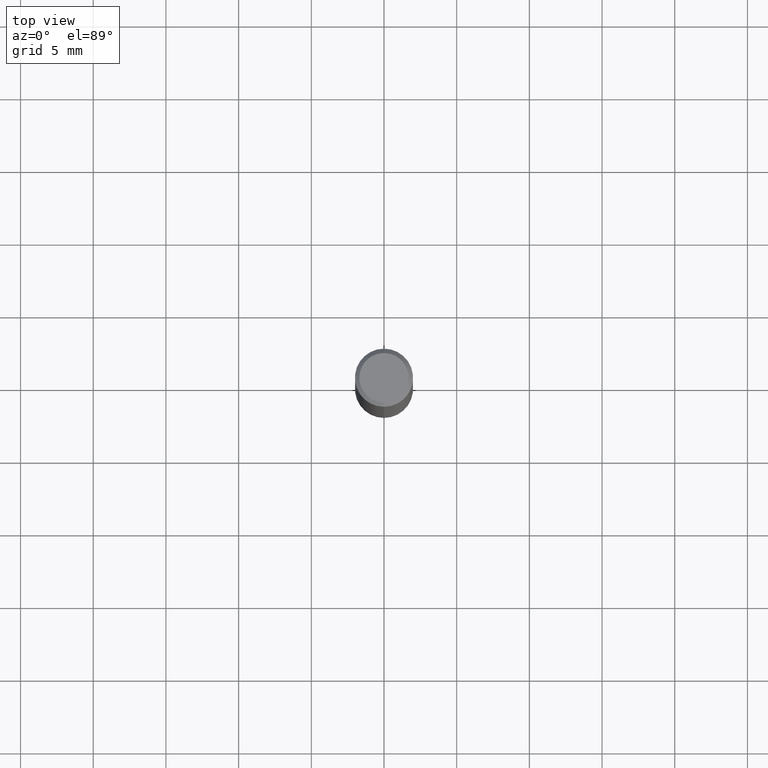
[diagram: clean part render]
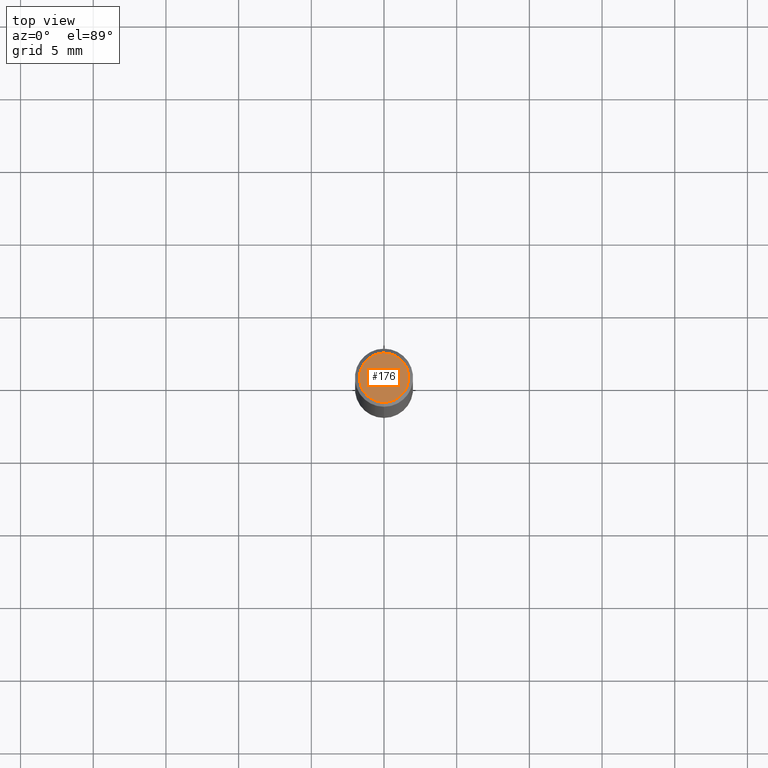
[diagram: same view with one face highlighted and labeled with its STEP entity id]
A machine part, top view. The second image highlights one B-rep face of the part: STEP entity #176.
In plain terms, the highlighted planar face has unit normal (-0, 0, 1).
Its self-contained STEP definition (entity closure, byte-faithful):
#92=EDGE_CURVE('',#174,#120,#219,.T.);
#120=VERTEX_POINT('',#250);
#148=EDGE_CURVE('',#120,#174,#281,.T.);
#174=VERTEX_POINT('',#310);
#176=ADVANCED_FACE('',(#312),#313,.T.);
#219=CIRCLE('',#353,1.7);
#250=CARTESIAN_POINT('',(2.08183080149804E-016,-1.7,0.0));
#281=CIRCLE('',#435,1.7);
#310=CARTESIAN_POINT('',(0.0,1.7,0.0));
#312=FACE_OUTER_BOUND('',#469,.T.);
#313=PLANE('',#470);
#353=AXIS2_PLACEMENT_3D('',#512,#513,#514);
#435=AXIS2_PLACEMENT_3D('',#586,#587,#588);
#469=EDGE_LOOP('',(#622,#623));
#470=AXIS2_PLACEMENT_3D('',#624,#625,#626);
#512=CARTESIAN_POINT('',(0.0,0.0,0.0));
#513=DIRECTION('',(0.0,0.0,-1.0));
#514=DIRECTION('',(0.0,1.0,0.0));
#586=CARTESIAN_POINT('',(0.0,0.0,0.0));
#587=DIRECTION('',(0.0,0.0,-1.0));
#588=DIRECTION('',(0.0,1.0,0.0));
#622=ORIENTED_EDGE('',*,*,#92,.F.);
#623=ORIENTED_EDGE('',*,*,#148,.F.);
#624=CARTESIAN_POINT('',(0.0,0.85,0.0));
#625=DIRECTION('',(-0.0,0.0,1.0));
#626=DIRECTION('',(0.0,-1.0,0.0));